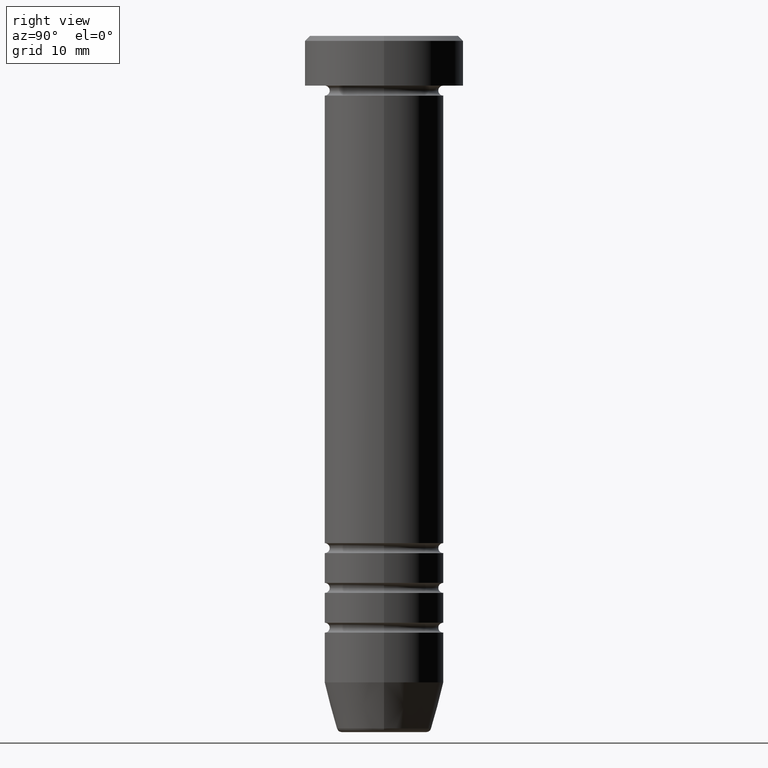
[diagram: clean part render]
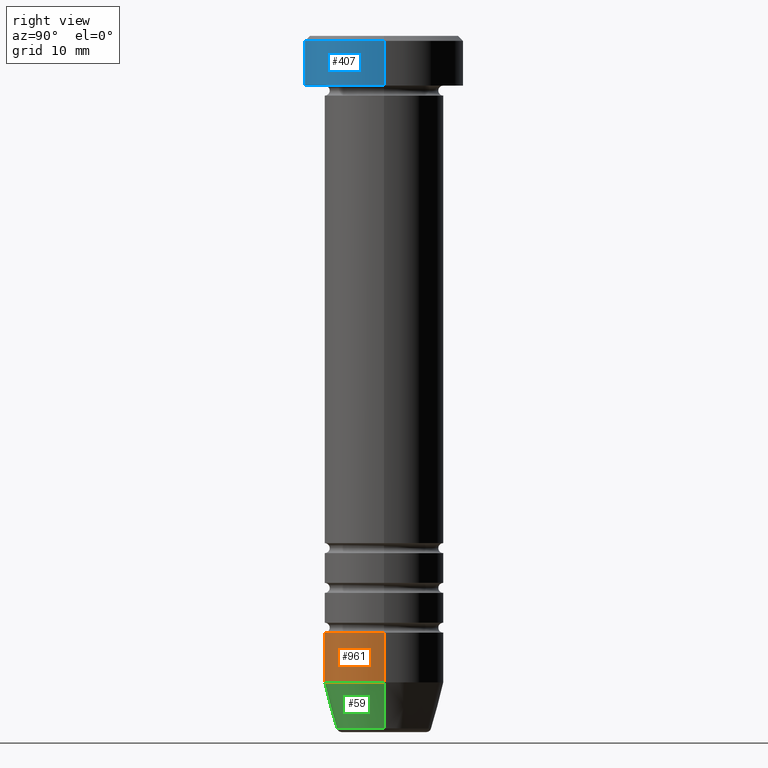
[diagram: same view with three faces highlighted in distinct colors, each labeled with its STEP entity id]
A machine part, right view with three faces highlighted in distinct colors.
Their STEP definitions:

[orange] entity #961 — the highlighted cylindrical surface (partial cylindrical patch) has radius 6 mm, axis along (-0, -0, 1).
#1 = CARTESIAN_POINT ( 'NONE',  ( -6.000000000000000000, 7.347880794884119736E-16, 0.000000000000000000 ) ) ;
#3 = DIRECTION ( 'NONE',  ( -0.000000000000000000, -0.000000000000000000, 1.000000000000000000 ) ) ;
#25 = AXIS2_PLACEMENT_3D ( 'NONE', #794, #950, #297 ) ;
#67 = DIRECTION ( 'NONE',  ( -0.000000000000000000, -0.000000000000000000, 1.000000000000000000 ) ) ;
#125 = VERTEX_POINT ( 'NONE', #844 ) ;
#137 = VECTOR ( 'NONE', #3, 1000.000000000000000 ) ;
#157 = AXIS2_PLACEMENT_3D ( 'NONE', #410, #67, #816 ) ;
#158 = DIRECTION ( 'NONE',  ( -0.000000000000000000, -0.000000000000000000, 1.000000000000000000 ) ) ;
#297 = DIRECTION ( 'NONE',  ( 1.000000000000000000, 0.000000000000000000, 0.000000000000000000 ) ) ;
#310 = VERTEX_POINT ( 'NONE', #609 ) ;
#349 = ORIENTED_EDGE ( 'NONE', *, *, #1006, .F. ) ;
#356 = VERTEX_POINT ( 'NONE', #438 ) ;
#404 = CIRCLE ( 'NONE', #689, 6.000000000000000000 ) ;
#410 = CARTESIAN_POINT ( 'NONE',  ( 0.000000000000000000, 0.000000000000000000, 0.000000000000000000 ) ) ;
#413 = CARTESIAN_POINT ( 'NONE',  ( 6.000000000000000000, 0.000000000000000000, 0.000000000000000000 ) ) ;
#438 = CARTESIAN_POINT ( 'NONE',  ( -6.000000000000000000, 7.347880794884119736E-16, -60.00000000000001421 ) ) ;
#448 = ORIENTED_EDGE ( 'NONE', *, *, #931, .T. ) ;
#484 = DIRECTION ( 'NONE',  ( 1.000000000000000000, 0.000000000000000000, 0.000000000000000000 ) ) ;
#493 = DIRECTION ( 'NONE',  ( -0.000000000000000000, -0.000000000000000000, 1.000000000000000000 ) ) ;
#510 = CARTESIAN_POINT ( 'NONE',  ( 0.000000000000000000, 0.000000000000000000, -60.00000000000001421 ) ) ;
#609 = CARTESIAN_POINT ( 'NONE',  ( -6.000000000000000000, 7.347880794884119736E-16, -65.00000000000000000 ) ) ;
#619 = EDGE_LOOP ( 'NONE', ( #349, #448, #898, #743 ) ) ;
#621 = EDGE_CURVE ( 'NONE', #1035, #125, #986, .T. ) ;
#649 = CIRCLE ( 'NONE', #25, 6.000000000000000000 ) ;
#689 = AXIS2_PLACEMENT_3D ( 'NONE', #510, #158, #484 ) ;
#724 = CYLINDRICAL_SURFACE ( 'NONE', #157, 6.000000000000000000 ) ;
#743 = ORIENTED_EDGE ( 'NONE', *, *, #977, .F. ) ;
#769 = VECTOR ( 'NONE', #493, 1000.000000000000000 ) ;
#794 = CARTESIAN_POINT ( 'NONE',  ( 0.000000000000000000, 0.000000000000000000, -65.00000000000000000 ) ) ;
#816 = DIRECTION ( 'NONE',  ( 1.000000000000000000, 0.000000000000000000, 0.000000000000000000 ) ) ;
#844 = CARTESIAN_POINT ( 'NONE',  ( 6.000000000000000000, 0.000000000000000000, -60.00000000000001421 ) ) ;
#881 = FACE_OUTER_BOUND ( 'NONE', #619, .T. ) ;
#898 = ORIENTED_EDGE ( 'NONE', *, *, #621, .T. ) ;
#931 = EDGE_CURVE ( 'NONE', #310, #1035, #649, .T. ) ;
#950 = DIRECTION ( 'NONE',  ( -0.000000000000000000, -0.000000000000000000, 1.000000000000000000 ) ) ;
#956 = LINE ( 'NONE', #1, #769 ) ;
#961 = ADVANCED_FACE ( 'NONE', ( #881 ), #724, .T. ) ;
#974 = CARTESIAN_POINT ( 'NONE',  ( 6.000000000000000000, 0.000000000000000000, -65.00000000000000000 ) ) ;
#977 = EDGE_CURVE ( 'NONE', #356, #125, #404, .T. ) ;
#986 = LINE ( 'NONE', #413, #137 ) ;
#1006 = EDGE_CURVE ( 'NONE', #310, #356, #956, .T. ) ;
#1035 = VERTEX_POINT ( 'NONE', #974 ) ;

[blue] entity #407 — the highlighted cylindrical surface (partial cylindrical patch) has radius 8 mm, axis along (-0, -0, 1).
#9 = CARTESIAN_POINT ( 'NONE',  ( 0.000000000000000000, 0.000000000000000000, -5.000000000000000000 ) ) ;
#62 = CARTESIAN_POINT ( 'NONE',  ( -8.000000000000000000, 9.797174393178825657E-16, -5.000000000000000000 ) ) ;
#96 = DIRECTION ( 'NONE',  ( 1.000000000000000000, 0.000000000000000000, 0.000000000000000000 ) ) ;
#102 = DIRECTION ( 'NONE',  ( 1.000000000000000000, 0.000000000000000000, 0.000000000000000000 ) ) ;
#136 = CARTESIAN_POINT ( 'NONE',  ( -8.000000000000000000, 9.797174393178825657E-16, -0.4999999999999935052 ) ) ;
#155 = CARTESIAN_POINT ( 'NONE',  ( 8.000000000000000000, 0.000000000000000000, -5.000000000000000000 ) ) ;
#223 = DIRECTION ( 'NONE',  ( -0.000000000000000000, -0.000000000000000000, 1.000000000000000000 ) ) ;
#228 = ORIENTED_EDGE ( 'NONE', *, *, #826, .T. ) ;
#241 = CARTESIAN_POINT ( 'NONE',  ( 8.000000000000000000, 0.000000000000000000, -0.4999999999999935052 ) ) ;
#253 = DIRECTION ( 'NONE',  ( -0.000000000000000000, -0.000000000000000000, 1.000000000000000000 ) ) ;
#261 = FACE_OUTER_BOUND ( 'NONE', #614, .T. ) ;
#279 = CYLINDRICAL_SURFACE ( 'NONE', #750, 8.000000000000000000 ) ;
#335 = DIRECTION ( 'NONE',  ( 1.000000000000000000, 0.000000000000000000, 0.000000000000000000 ) ) ;
#352 = AXIS2_PLACEMENT_3D ( 'NONE', #9, #253, #335 ) ;
#388 = VECTOR ( 'NONE', #563, 1000.000000000000000 ) ;
#403 = ORIENTED_EDGE ( 'NONE', *, *, #536, .T. ) ;
#407 = ADVANCED_FACE ( 'NONE', ( #261 ), #279, .T. ) ;
#422 = VECTOR ( 'NONE', #223, 1000.000000000000000 ) ;
#474 = CIRCLE ( 'NONE', #352, 8.000000000000000000 ) ;
#494 = VERTEX_POINT ( 'NONE', #136 ) ;
#524 = DIRECTION ( 'NONE',  ( -0.000000000000000000, -0.000000000000000000, 1.000000000000000000 ) ) ;
#536 = EDGE_CURVE ( 'NONE', #988, #869, #474, .T. ) ;
#563 = DIRECTION ( 'NONE',  ( -0.000000000000000000, -0.000000000000000000, 1.000000000000000000 ) ) ;
#581 = CARTESIAN_POINT ( 'NONE',  ( 0.000000000000000000, 0.000000000000000000, -0.4999999999999935052 ) ) ;
#597 = VERTEX_POINT ( 'NONE', #241 ) ;
#614 = EDGE_LOOP ( 'NONE', ( #985, #403, #228, #922 ) ) ;
#638 = EDGE_CURVE ( 'NONE', #597, #494, #980, .T. ) ;
#744 = LINE ( 'NONE', #889, #422 ) ;
#750 = AXIS2_PLACEMENT_3D ( 'NONE', #1002, #524, #102 ) ;
#751 = AXIS2_PLACEMENT_3D ( 'NONE', #581, #984, #96 ) ;
#826 = EDGE_CURVE ( 'NONE', #869, #597, #947, .T. ) ;
#869 = VERTEX_POINT ( 'NONE', #155 ) ;
#889 = CARTESIAN_POINT ( 'NONE',  ( -8.000000000000000000, 9.797174393178825657E-16, 0.000000000000000000 ) ) ;
#922 = ORIENTED_EDGE ( 'NONE', *, *, #638, .T. ) ;
#947 = LINE ( 'NONE', #962, #388 ) ;
#962 = CARTESIAN_POINT ( 'NONE',  ( 8.000000000000000000, 0.000000000000000000, 0.000000000000000000 ) ) ;
#980 = CIRCLE ( 'NONE', #751, 8.000000000000000000 ) ;
#984 = DIRECTION ( 'NONE',  ( 0.000000000000000000, 0.000000000000000000, -1.000000000000000000 ) ) ;
#985 = ORIENTED_EDGE ( 'NONE', *, *, #1042, .F. ) ;
#988 = VERTEX_POINT ( 'NONE', #62 ) ;
#1002 = CARTESIAN_POINT ( 'NONE',  ( 0.000000000000000000, 0.000000000000000000, 0.000000000000000000 ) ) ;
#1042 = EDGE_CURVE ( 'NONE', #988, #494, #744, .T. ) ;

[green] entity #59 — the highlighted conical surface has half-angle 15 deg.
#2 = DIRECTION ( 'NONE',  ( -0.000000000000000000, -0.000000000000000000, 1.000000000000000000 ) ) ;
#10 = VERTEX_POINT ( 'NONE', #975 ) ;
#25 = AXIS2_PLACEMENT_3D ( 'NONE', #794, #950, #297 ) ;
#40 = CIRCLE ( 'NONE', #628, 4.759553456999433330 ) ;
#59 = ADVANCED_FACE ( 'NONE', ( #282 ), #520, .T. ) ;
#103 = AXIS2_PLACEMENT_3D ( 'NONE', #354, #105, #1007 ) ;
#105 = DIRECTION ( 'NONE',  ( -0.000000000000000000, -0.000000000000000000, 1.000000000000000000 ) ) ;
#148 = DIRECTION ( 'NONE',  ( 0.2588190451025214611, 0.000000000000000000, 0.9659258262890679791 ) ) ;
#182 = EDGE_LOOP ( 'NONE', ( #543, #873, #760, #884 ) ) ;
#212 = EDGE_CURVE ( 'NONE', #10, #310, #715, .T. ) ;
#282 = FACE_OUTER_BOUND ( 'NONE', #182, .T. ) ;
#297 = DIRECTION ( 'NONE',  ( 1.000000000000000000, 0.000000000000000000, 0.000000000000000000 ) ) ;
#310 = VERTEX_POINT ( 'NONE', #609 ) ;
#326 = VECTOR ( 'NONE', #880, 1000.000000000000114 ) ;
#354 = CARTESIAN_POINT ( 'NONE',  ( 0.000000000000000000, 0.000000000000000000, -70.00000000000000000 ) ) ;
#520 = CONICAL_SURFACE ( 'NONE', #103, 4.660254037844381081, 0.2617993877991502405 ) ;
#535 = CARTESIAN_POINT ( 'NONE',  ( -4.660254037844381081, 5.707165190659649910E-16, -70.00000000000000000 ) ) ;
#543 = ORIENTED_EDGE ( 'NONE', *, *, #212, .F. ) ;
#609 = CARTESIAN_POINT ( 'NONE',  ( -6.000000000000000000, 7.347880794884119736E-16, -65.00000000000000000 ) ) ;
#628 = AXIS2_PLACEMENT_3D ( 'NONE', #739, #2, #1058 ) ;
#649 = CIRCLE ( 'NONE', #25, 6.000000000000000000 ) ;
#670 = VECTOR ( 'NONE', #148, 1000.000000000000114 ) ;
#715 = LINE ( 'NONE', #535, #326 ) ;
#739 = CARTESIAN_POINT ( 'NONE',  ( 0.000000000000000000, 0.000000000000000000, -69.62940952255127058 ) ) ;
#760 = ORIENTED_EDGE ( 'NONE', *, *, #827, .T. ) ;
#794 = CARTESIAN_POINT ( 'NONE',  ( 0.000000000000000000, 0.000000000000000000, -65.00000000000000000 ) ) ;
#827 = EDGE_CURVE ( 'NONE', #850, #1035, #886, .T. ) ;
#850 = VERTEX_POINT ( 'NONE', #1052 ) ;
#873 = ORIENTED_EDGE ( 'NONE', *, *, #883, .T. ) ;
#880 = DIRECTION ( 'NONE',  ( -0.2588190451025214611, 3.169619151431774186E-17, 0.9659258262890679791 ) ) ;
#883 = EDGE_CURVE ( 'NONE', #10, #850, #40, .T. ) ;
#884 = ORIENTED_EDGE ( 'NONE', *, *, #931, .F. ) ;
#886 = LINE ( 'NONE', #1033, #670 ) ;
#931 = EDGE_CURVE ( 'NONE', #310, #1035, #649, .T. ) ;
#950 = DIRECTION ( 'NONE',  ( -0.000000000000000000, -0.000000000000000000, 1.000000000000000000 ) ) ;
#974 = CARTESIAN_POINT ( 'NONE',  ( 6.000000000000000000, 0.000000000000000000, -65.00000000000000000 ) ) ;
#975 = CARTESIAN_POINT ( 'NONE',  ( -4.759553456999433330, 6.588326350684596347E-16, -69.62940952255127058 ) ) ;
#1007 = DIRECTION ( 'NONE',  ( 1.000000000000000000, 0.000000000000000000, 0.000000000000000000 ) ) ;
#1033 = CARTESIAN_POINT ( 'NONE',  ( 4.660254037844381081, 0.000000000000000000, -70.00000000000000000 ) ) ;
#1035 = VERTEX_POINT ( 'NONE', #974 ) ;
#1052 = CARTESIAN_POINT ( 'NONE',  ( 4.759553456999433330, 0.000000000000000000, -69.62940952255127058 ) ) ;
#1058 = DIRECTION ( 'NONE',  ( -1.000000000000000000, 0.000000000000000000, 0.000000000000000000 ) ) ;